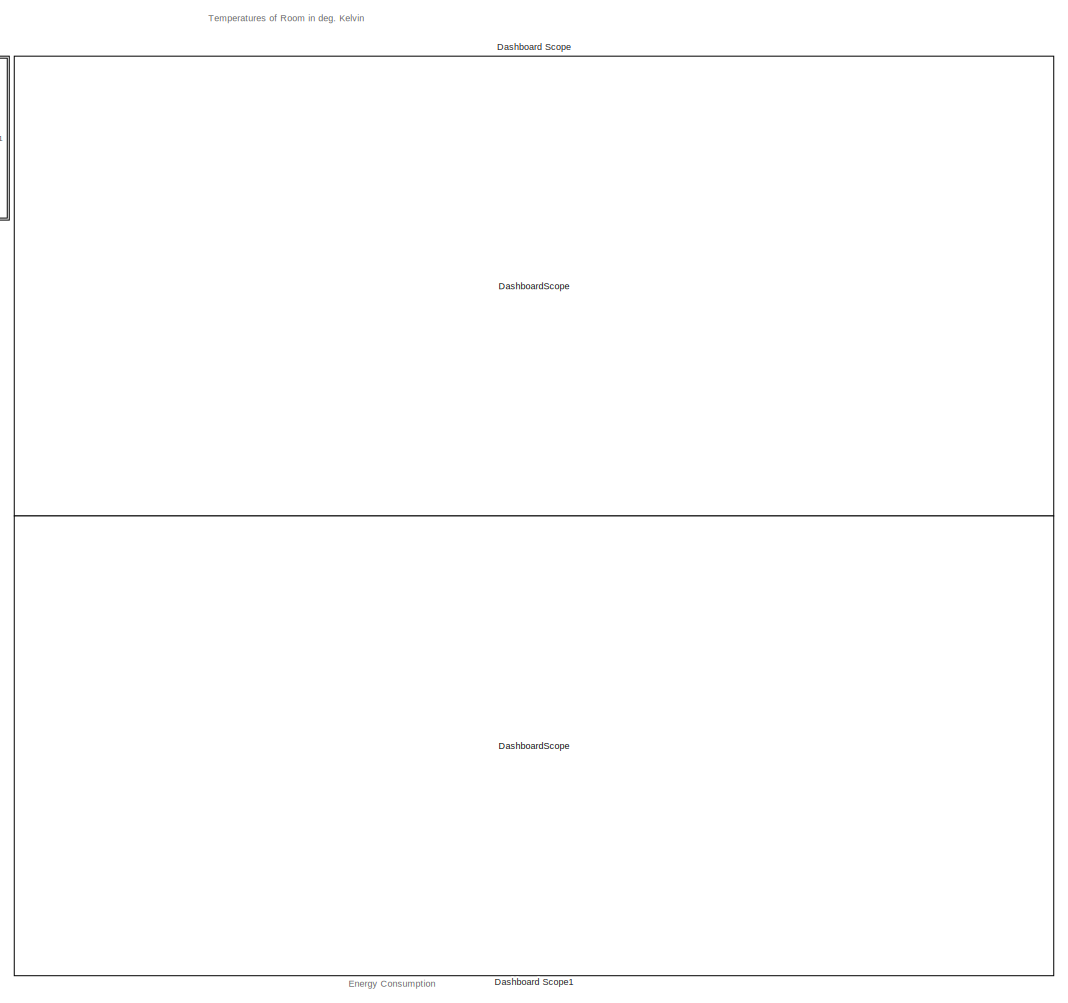
[diagram: root canvas - part 1/4, center side, full height]
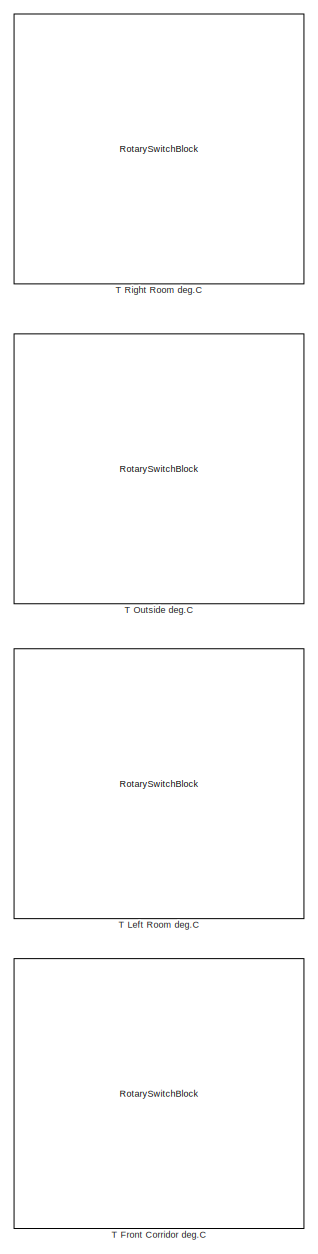
[diagram: root canvas - part 2/4, right side, full height]
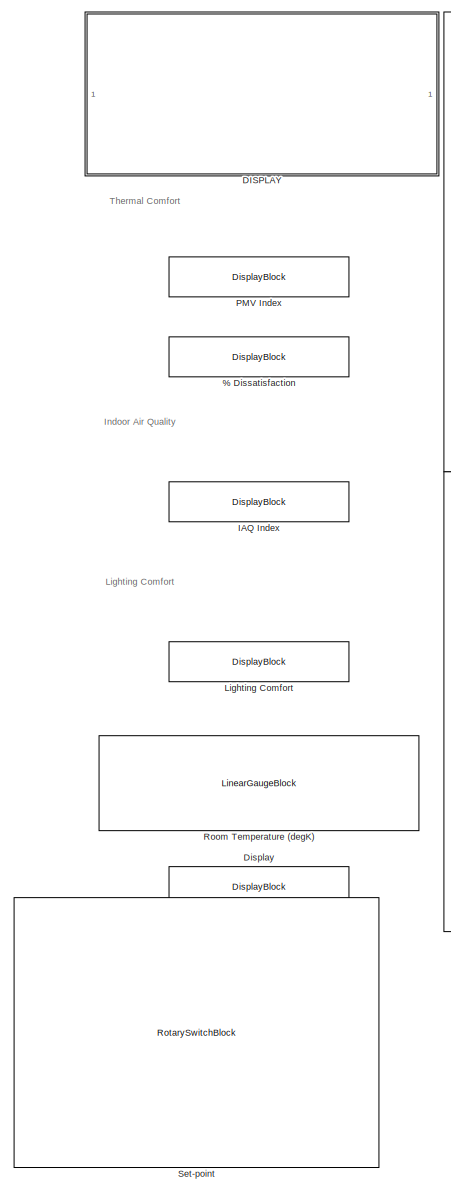
[diagram: root canvas - part 3/4, left side, full height]
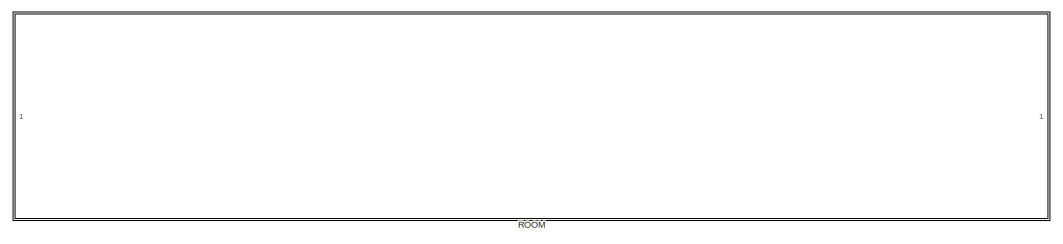
[diagram: root canvas - part 4/4, bottom center region]
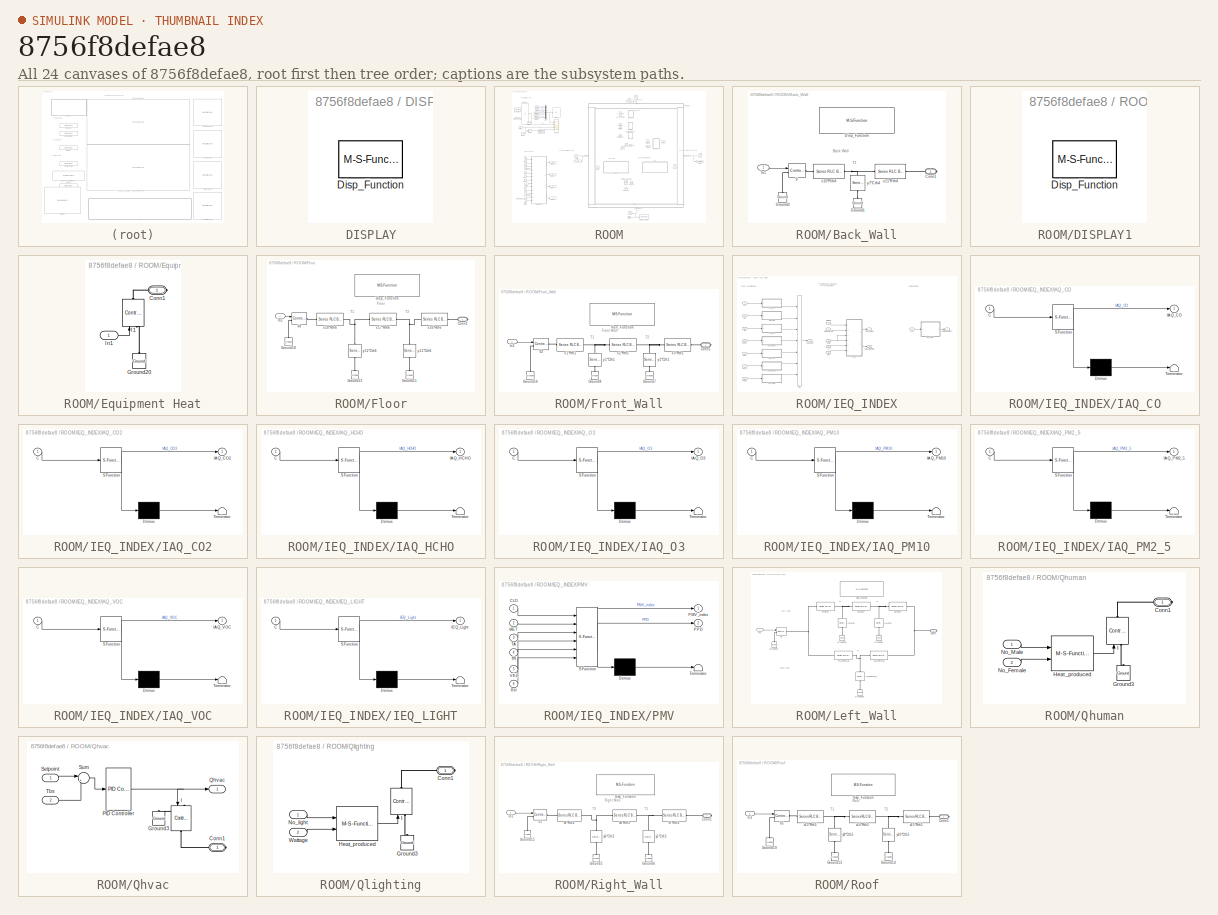
[diagram: thumbnail index - all 24 canvases of the model, root first then tree order]
MODEL slx_8756f8defae8
KIND model
CONFIG AbsTol = auto
CONFIG EnableMultiTasking = on
CONFIG FixedStep = Ts
CONFIG InitFcn = clc;\nclear all;\nclose all;\naddpath('<path> files\3r2c model')\nTs=1\nDuration=36000;\n%% Coefficients of Rs and Cs\n\n%% Front Wall\nl1 = 7.37;\nb1 = 2.63;\ny1 = 0.5;\nx1 = 0.33;\ny2 = 0.5;\nx2 = 0.33;\nx3 = 0.33;\n\n%% Left Wall\nl2 = 10.11;\nb2 = 2.63;\ny3 = 0.5;\nx4 = 0.33;\ny4 = 0.5;\nx5 = 0.33;\nx6 = 0.33;\n\n%% Left Wall Glass\nx4_g = 0.5;\nx5_g = 0.5;\ny3_g = 1;\n\n%% Right Wall\nl3 = 7.37;\n...<+3730ch>
CONFIG MaxStep = auto
CONFIG MinStep = auto
CONFIG RelTol = 1e-3
CONFIG SampleTimeConstraint = Unconstrained
CONFIG Solver = ode3
CONFIG SolverName = ode3
CONFIG StartTime = 0.0
CONFIG StopTime = inf
BLOCK [DisplayBlock] % Dissatisfaction
  LabelPosition = Hide
  WebBlockId = 889
BLOCK [SubSystem] DISPLAY
  AttributesFormatString = 81.39
  Ports = []
  RequestExecContextInheritance = off
BLOCK [M-S-Function] DISPLAY/Disp_Function
  FunctionName = fn_Display
  Ports = []
BLOCK [DashboardScope] Dashboard Scope
  WebBlockId = 896
  Ymax = 330
  Ymin = 270
BLOCK [DashboardScope] Dashboard Scope1
  WebBlockId = 897
  Ymax = 10000
  Ymin = 0
BLOCK [DisplayBlock] Display
  LabelPosition = Hide
  WebBlockId = 772
BLOCK [DisplayBlock] IAQ Index
  LabelPosition = Hide
  WebBlockId = 890
BLOCK [DisplayBlock] Lighting Comfort
  LabelPosition = Hide
  WebBlockId = 893
BLOCK [DisplayBlock] PMV Index
  LabelPosition = Hide
  WebBlockId = 888
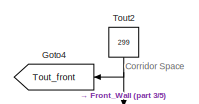
[diagram: ROOM - part 1/5, top center region]
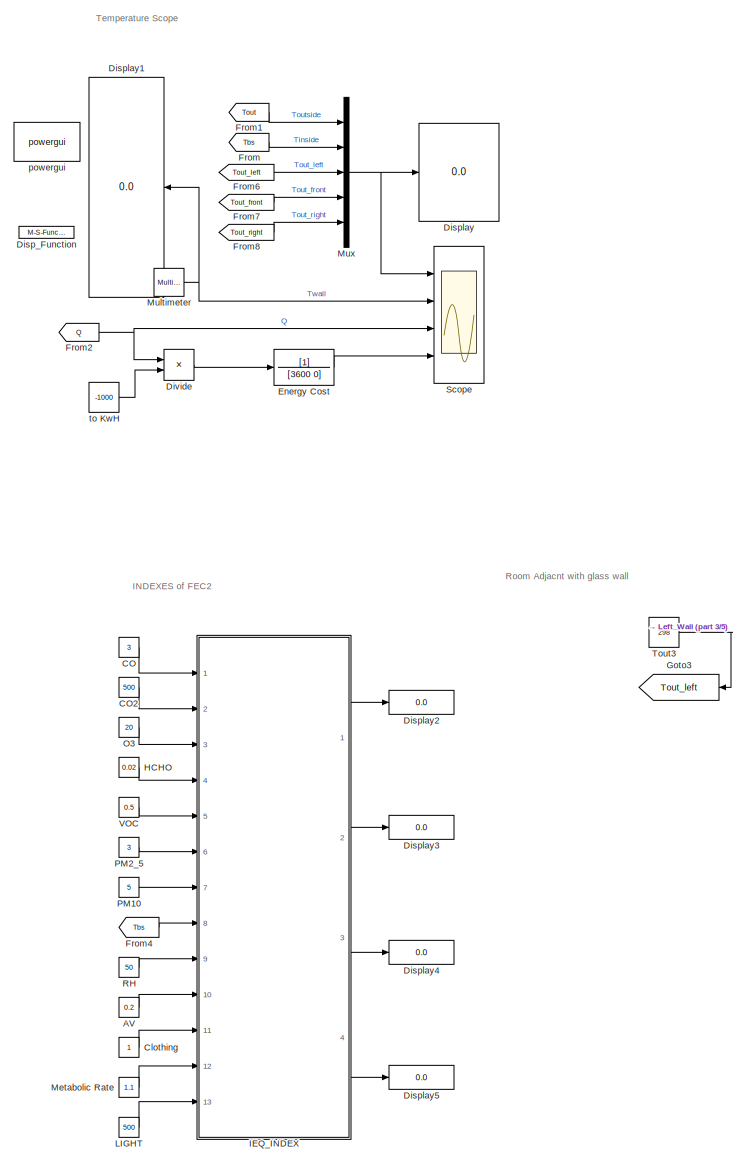
[diagram: ROOM - part 2/5, left side, full height]
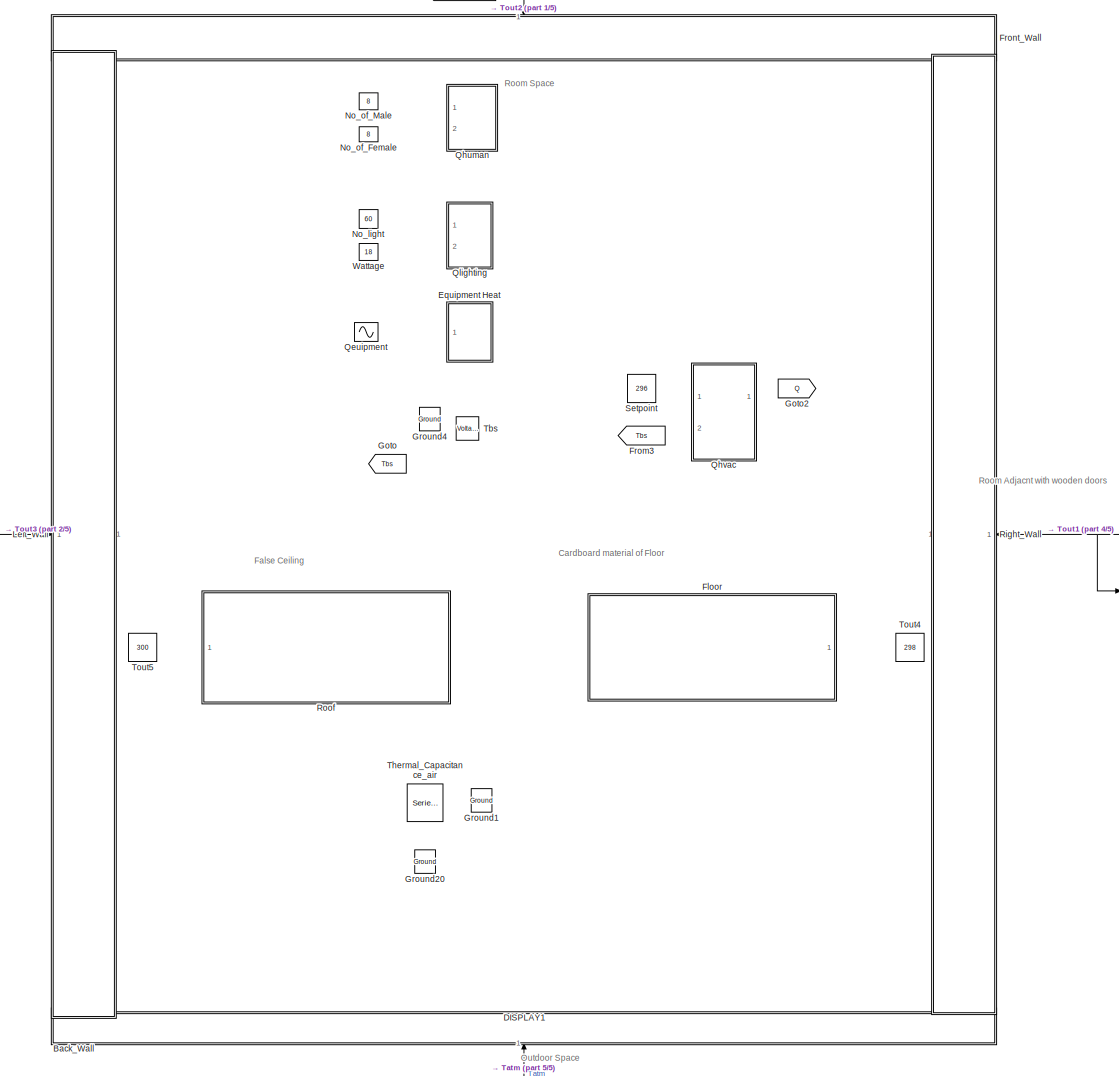
[diagram: ROOM - part 3/5, center side, full height]
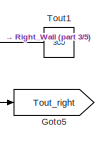
[diagram: ROOM - part 4/5, middle right region]
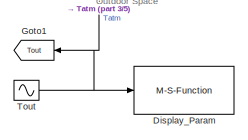
[diagram: ROOM - part 5/5, bottom center region]
BLOCK [SubSystem] ROOM
  Ports = []
  RequestExecContextInheritance = off
BLOCK [Constant] ROOM/AV
  Value = 0.2
BLOCK [SubSystem] ROOM/Back_Wall
  Ports = [1, 0, 0, 0, 0, 0, 1]
  RequestExecContextInheritance = off
BLOCK [PMIOPort] ROOM/Back_Wall/Conn1
  Side = Right
BLOCK [M-S-Function] ROOM/Back_Wall/Disp_Function
  FunctionName = fn_Display_wall
  Ports = []
BLOCK [Reference] ROOM/Back_Wall/Ground1  REF=powerlib/Elements/Ground
  Ports = [0, 0, 0, 0, 0, 1]
  SourceBlock = powerlib/Elements/Ground
  SourceProductBaseCode = PS
  SourceProductName = Simscape Electrical
  SourceType = Ground
BLOCK [Reference] ROOM/Back_Wall/Ground2  REF=powerlib/Elements/Ground
  Ports = [0, 0, 0, 0, 0, 1]
  SourceBlock = powerlib/Elements/Ground
  SourceProductBaseCode = PS
  SourceProductName = Simscape Electrical
  SourceType = Ground
BLOCK [Inport] ROOM/Back_Wall/In1
  IconDisplay = Port number
BLOCK [Reference] ROOM/Back_Wall/V  REF=powerlib/Electrical
Sources/Controlled Voltage Source
  Ports = [1, 0, 0, 0, 0, 1, 1]
  SourceBlock = powerlib/Electrical\nSources/Controlled Voltage Source
  SourceProductBaseCode = PS
  SourceProductName = Simscape Electrical
  SourceType = Controlled Voltage Source
BLOCK [Reference] ROOM/Back_Wall/x10*Rth4  REF=powerlib/Elements/Series RLC Branch
  Ports = [0, 0, 0, 0, 0, 1, 1]
  SourceBlock = powerlib/Elements/Series RLC Branch
  SourceProductBaseCode = PS
  SourceProductName = Simscape Electrical
  SourceType = Series RLC Branch
BLOCK [Reference] ROOM/Back_Wall/x11*Rth4  REF=powerlib/Elements/Series RLC Branch
  Ports = [0, 0, 0, 0, 0, 1, 1]
  SourceBlock = powerlib/Elements/Series RLC Branch
  SourceProductBaseCode = PS
  SourceProductName = Simscape Electrical
  SourceType = Series RLC Branch
BLOCK [Reference] ROOM/Back_Wall/y7*Cth4  REF=powerlib/Elements/Series RLC Branch
  Ports = [0, 0, 0, 0, 0, 1, 1]
  SourceBlock = powerlib/Elements/Series RLC Branch
  SourceProductBaseCode = PS
  SourceProductName = Simscape Electrical
  SourceType = Series RLC Branch
BLOCK [Constant] ROOM/CO
  Value = 3
BLOCK [Constant] ROOM/CO2
  Value = 500
BLOCK [Constant] ROOM/Clothing
BLOCK [SubSystem] ROOM/DISPLAY1
  AttributesFormatString = 35.01
  Ports = []
  RequestExecContextInheritance = off
BLOCK [M-S-Function] ROOM/DISPLAY1/Disp_Function
  FunctionName = fn_Display_Room
  Ports = []
BLOCK [M-S-Function] ROOM/Disp_Function
  FunctionName = fn_IEQ
  Ports = []
BLOCK [Display] ROOM/Display
  Decimation = 1
  Ports = [1]
BLOCK [Display] ROOM/Display1
  Decimation = 1
  Ports = [1]
BLOCK [Display] ROOM/Display2
  Decimation = 1
  Ports = [1]
BLOCK [Display] ROOM/Display3
  Decimation = 1
  Ports = [1]
BLOCK [Display] ROOM/Display4
  Decimation = 1
  Ports = [1]
BLOCK [Display] ROOM/Display5
  Decimation = 1
  Ports = [1]
BLOCK [M-S-Function] ROOM/Display_Param
  FunctionName = Display_Param
  Ports = [1]
BLOCK [Product] ROOM/Divide
  InputSameDT = off
  Inputs = */
  OutDataTypeStr = Inherit: Inherit via internal rule
  Ports = [2, 1]
  RndMeth = Floor
  SaturateOnIntegerOverflow = off
BLOCK [TransferFcn] ROOM/Energy Cost
  Denominator = [3600 0]
BLOCK [SubSystem] ROOM/Equipment Heat
  Ports = [1, 0, 0, 0, 0, 0, 1]
  RequestExecContextInheritance = off
  ShowPortLabels = none
BLOCK [PMIOPort] ROOM/Equipment Heat/Conn1
  Side = Right
BLOCK [Reference] ROOM/Equipment Heat/Ground20  REF=powerlib/Elements/Ground
  Ports = [0, 0, 0, 0, 0, 1]
  SourceBlock = powerlib/Elements/Ground
  SourceProductBaseCode = PS
  SourceProductName = Simscape Electrical
  SourceType = Ground
BLOCK [Reference] ROOM/Equipment Heat/I1  REF=powerlib/Electrical
Sources/Controlled Current Source
  Ports = [1, 0, 0, 0, 0, 1, 1]
  SourceBlock = powerlib/Electrical\nSources/Controlled Current Source
  SourceProductBaseCode = PS
  SourceProductName = Simscape Electrical
  SourceType = Controlled Current Source
BLOCK [Inport] ROOM/Equipment Heat/In1
  IconDisplay = Port number
BLOCK [SubSystem] ROOM/Floor
  Ports = [1, 0, 0, 0, 0, 0, 1]
  RequestExecContextInheritance = off
BLOCK [PMIOPort] ROOM/Floor/Conn1
  Side = Right
BLOCK [M-S-Function] ROOM/Floor/Disp_Function
  FunctionName = fn_Display_wall
  Ports = []
BLOCK [Reference] ROOM/Floor/Ground11  REF=powerlib/Elements/Ground
  Ports = [0, 0, 0, 0, 0, 1]
  SourceBlock = powerlib/Elements/Ground
  SourceProductBaseCode = PS
  SourceProductName = Simscape Electrical
  SourceType = Ground
BLOCK [Reference] ROOM/Floor/Ground12  REF=powerlib/Elements/Ground
  Ports = [0, 0, 0, 0, 0, 1]
  SourceBlock = powerlib/Elements/Ground
  SourceProductBaseCode = PS
  SourceProductName = Simscape Electrical
  SourceType = Ground
BLOCK [Reference] ROOM/Floor/Ground18  REF=powerlib/Elements/Ground
  Ports = [0, 0, 0, 0, 0, 1]
  SourceBlock = powerlib/Elements/Ground
  SourceProductBaseCode = PS
  SourceProductName = Simscape Electrical
  SourceType = Ground
BLOCK [Inport] ROOM/Floor/In1
  IconDisplay = Port number
BLOCK [Reference] ROOM/Floor/V4  REF=powerlib/Electrical
Sources/Controlled Voltage Source
  Ports = [1, 0, 0, 0, 0, 1, 1]
  SourceBlock = powerlib/Electrical\nSources/Controlled Voltage Source
  SourceProductBaseCode = PS
  SourceProductName = Simscape Electrical
  SourceType = Controlled Voltage Source
BLOCK [Reference] ROOM/Floor/x16*Rth6  REF=powerlib/Elements/Series RLC Branch
  Ports = [0, 0, 0, 0, 0, 1, 1]
  SourceBlock = powerlib/Elements/Series RLC Branch
  SourceProductBaseCode = PS
  SourceProductName = Simscape Electrical
  SourceType = Series RLC Branch
BLOCK [Reference] ROOM/Floor/x17*Rth6  REF=powerlib/Elements/Series RLC Branch
  Ports = [0, 0, 0, 0, 0, 1, 1]
  SourceBlock = powerlib/Elements/Series RLC Branch
  SourceProductBaseCode = PS
  SourceProductName = Simscape Electrical
  SourceType = Series RLC Branch
BLOCK [Reference] ROOM/Floor/x18*Rth6  REF=powerlib/Elements/Series RLC Branch
  Ports = [0, 0, 0, 0, 0, 1, 1]
  SourceBlock = powerlib/Elements/Series RLC Branch
  SourceProductBaseCode = PS
  SourceProductName = Simscape Electrical
  SourceType = Series RLC Branch
BLOCK [Reference] ROOM/Floor/y11*Cth6  REF=powerlib/Elements/Series RLC Branch
  Ports = [0, 0, 0, 0, 0, 1, 1]
  SourceBlock = powerlib/Elements/Series RLC Branch
  SourceProductBaseCode = PS
  SourceProductName = Simscape Electrical
  SourceType = Series RLC Branch
BLOCK [Reference] ROOM/Floor/y12*Cth6  REF=powerlib/Elements/Series RLC Branch
  Ports = [0, 0, 0, 0, 0, 1, 1]
  SourceBlock = powerlib/Elements/Series RLC Branch
  SourceProductBaseCode = PS
  SourceProductName = Simscape Electrical
  SourceType = Series RLC Branch
BLOCK [From] ROOM/From
  GotoTag = Tbs
BLOCK [From] ROOM/From1
  GotoTag = Tout
BLOCK [From] ROOM/From2
  GotoTag = Q
BLOCK [From] ROOM/From3
  GotoTag = Tbs
BLOCK [From] ROOM/From4
  GotoTag = Tbs
BLOCK [From] ROOM/From6
  GotoTag = Tout_left
BLOCK [From] ROOM/From7
  GotoTag = Tout_front
BLOCK [From] ROOM/From8
  GotoTag = Tout_right
BLOCK [SubSystem] ROOM/Front_Wall
  Ports = [1, 0, 0, 0, 0, 0, 1]
  RequestExecContextInheritance = off
BLOCK [PMIOPort] ROOM/Front_Wall/Conn1
  Side = Right
BLOCK [M-S-Function] ROOM/Front_Wall/Disp_Function
  FunctionName = fn_Display_wall
  Ports = []
BLOCK [Reference] ROOM/Front_Wall/Ground16  REF=powerlib/Elements/Ground
  Ports = [0, 0, 0, 0, 0, 1]
  SourceBlock = powerlib/Elements/Ground
  SourceProductBaseCode = PS
  SourceProductName = Simscape Electrical
  SourceType = Ground
BLOCK [Reference] ROOM/Front_Wall/Ground7  REF=powerlib/Elements/Ground
  Ports = [0, 0, 0, 0, 0, 1]
  SourceBlock = powerlib/Elements/Ground
  SourceProductBaseCode = PS
  SourceProductName = Simscape Electrical
  SourceType = Ground
BLOCK [Reference] ROOM/Front_Wall/Ground8  REF=powerlib/Elements/Ground
  Ports = [0, 0, 0, 0, 0, 1]
  SourceBlock = powerlib/Elements/Ground
  SourceProductBaseCode = PS
  SourceProductName = Simscape Electrical
  SourceType = Ground
BLOCK [Inport] ROOM/Front_Wall/In1
  IconDisplay = Port number
BLOCK [Reference] ROOM/Front_Wall/V2  REF=powerlib/Electrical
Sources/Controlled Voltage Source
  Ports = [1, 0, 0, 0, 0, 1, 1]
  SourceBlock = powerlib/Electrical\nSources/Controlled Voltage Source
  SourceProductBaseCode = PS
  SourceProductName = Simscape Electrical
  SourceType = Controlled Voltage Source
BLOCK [Reference] ROOM/Front_Wall/x1*Rth1  REF=powerlib/Elements/Series RLC Branch
  Ports = [0, 0, 0, 0, 0, 1, 1]
  SourceBlock = powerlib/Elements/Series RLC Branch
  SourceProductBaseCode = PS
  SourceProductName = Simscape Electrical
  SourceType = Series RLC Branch
BLOCK [Reference] ROOM/Front_Wall/x2*Rth1  REF=powerlib/Elements/Series RLC Branch
  Ports = [0, 0, 0, 0, 0, 1, 1]
  SourceBlock = powerlib/Elements/Series RLC Branch
  SourceProductBaseCode = PS
  SourceProductName = Simscape Electrical
  SourceType = Series RLC Branch
BLOCK [Reference] ROOM/Front_Wall/x3*Rth1  REF=powerlib/Elements/Series RLC Branch
  Ports = [0, 0, 0, 0, 0, 1, 1]
  SourceBlock = powerlib/Elements/Series RLC Branch
  SourceProductBaseCode = PS
  SourceProductName = Simscape Electrical
  SourceType = Series RLC Branch
BLOCK [Reference] ROOM/Front_Wall/y1*Cth1  REF=powerlib/Elements/Series RLC Branch
  Ports = [0, 0, 0, 0, 0, 1, 1]
  SourceBlock = powerlib/Elements/Series RLC Branch
  SourceProductBaseCode = PS
  SourceProductName = Simscape Electrical
  SourceType = Series RLC Branch
BLOCK [Reference] ROOM/Front_Wall/y2*Cth1  REF=powerlib/Elements/Series RLC Branch
  Ports = [0, 0, 0, 0, 0, 1, 1]
  SourceBlock = powerlib/Elements/Series RLC Branch
  SourceProductBaseCode = PS
  SourceProductName = Simscape Electrical
  SourceType = Series RLC Branch
BLOCK [Goto] ROOM/Goto
  GotoTag = Tbs
BLOCK [Goto] ROOM/Goto1
  GotoTag = Tout
BLOCK [Goto] ROOM/Goto2
  GotoTag = Q
BLOCK [Goto] ROOM/Goto3
  GotoTag = Tout_left
BLOCK [Goto] ROOM/Goto4
  GotoTag = Tout_front
BLOCK [Goto] ROOM/Goto5
  GotoTag = Tout_right
BLOCK [Reference] ROOM/Ground1  REF=powerlib/Elements/Ground
  Ports = [0, 0, 0, 0, 0, 1]
  SourceBlock = powerlib/Elements/Ground
  SourceProductBaseCode = PS
  SourceProductName = Simscape Electrical
  SourceType = Ground
BLOCK [Reference] ROOM/Ground20  REF=powerlib/Elements/Ground
  Ports = [0, 0, 0, 0, 0, 1]
  SourceBlock = powerlib/Elements/Ground
  SourceProductBaseCode = PS
  SourceProductName = Simscape Electrical
  SourceType = Ground
BLOCK [Reference] ROOM/Ground4  REF=powerlib/Elements/Ground
  Ports = [0, 0, 0, 0, 0, 1]
  SourceBlock = powerlib/Elements/Ground
  SourceProductBaseCode = PS
  SourceProductName = Simscape Electrical
  SourceType = Ground
BLOCK [Constant] ROOM/HCHO
  Value = 0.02
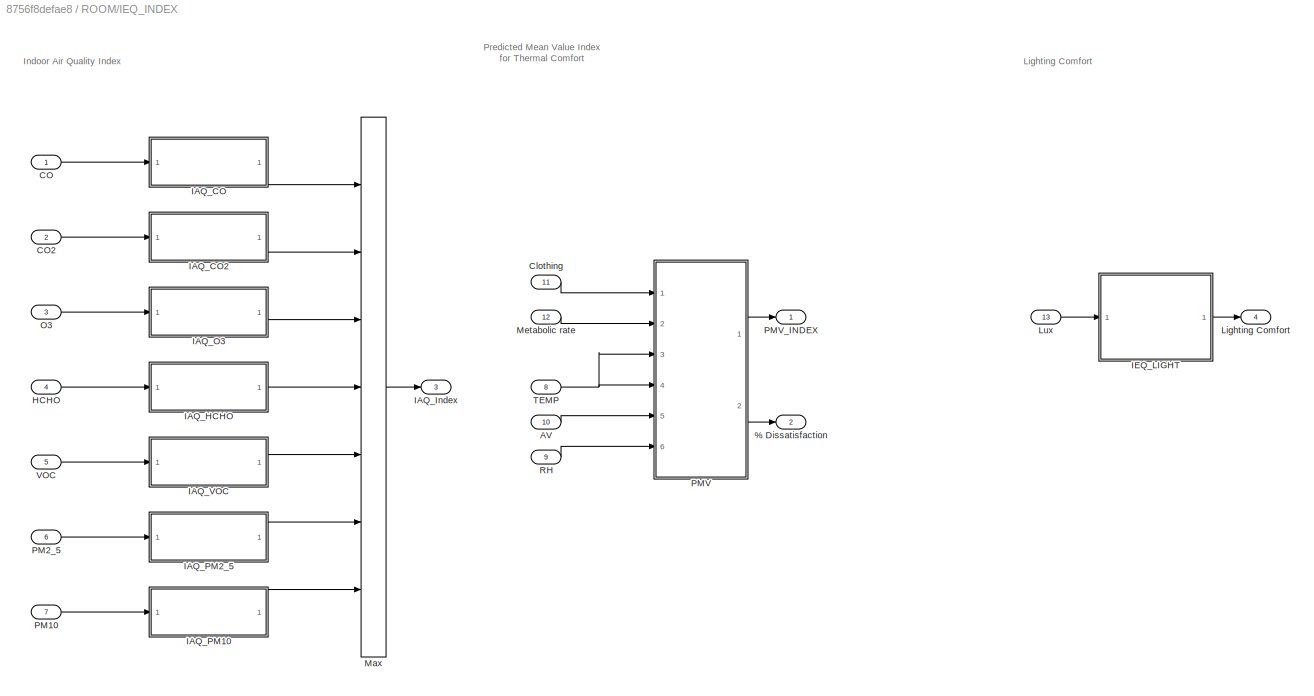
BLOCK [SubSystem] ROOM/IEQ_INDEX
  Ports = [13, 4]
  RequestExecContextInheritance = off
BLOCK [Outport] ROOM/IEQ_INDEX/% Dissatisfaction 
  IconDisplay = Port number
  Port = 2
BLOCK [Inport] ROOM/IEQ_INDEX/AV
  IconDisplay = Port number
  Port = 10
BLOCK [Inport] ROOM/IEQ_INDEX/CO
  IconDisplay = Port number
BLOCK [Inport] ROOM/IEQ_INDEX/CO2
  IconDisplay = Port number
  Port = 2
BLOCK [Inport] ROOM/IEQ_INDEX/Clothing
  IconDisplay = Port number
  Port = 11
BLOCK [Inport] ROOM/IEQ_INDEX/HCHO
  IconDisplay = Port number
  Port = 4
BLOCK [SubSystem] ROOM/IEQ_INDEX/IAQ_CO
  ErrorFcn = Stateflow.Translate.translate
  PermitHierarchicalResolution = ExplicitOnly
  Ports = [1, 1]
  RequestExecContextInheritance = off
  SFBlockType = MATLAB Function
  TreatAsAtomicUnit = on
BLOCK [Demux] ROOM/IEQ_INDEX/IAQ_CO/ Demux 
  Outputs = 1
  Ports = [1, 1]
BLOCK [S-Function] ROOM/IEQ_INDEX/IAQ_CO/ SFunction 
  EnableBusSupport = on
  FunctionName = sf_sfun
  PortCounts = [1 2]
  Ports = [1, 2]
  SFcnIsStateOwnerBlock = off
  SFunctionDeploymentMode = off
  Tag = Stateflow S-Function Wall_Model_Version_1_8 2
BLOCK [Terminator] ROOM/IEQ_INDEX/IAQ_CO/ Terminator 
BLOCK [Inport] ROOM/IEQ_INDEX/IAQ_CO/C
  IconDisplay = Port number
BLOCK [Outport] ROOM/IEQ_INDEX/IAQ_CO/IAQ_CO
  IconDisplay = Port number
BLOCK [SubSystem] ROOM/IEQ_INDEX/IAQ_CO2
  ErrorFcn = Stateflow.Translate.translate
  PermitHierarchicalResolution = ExplicitOnly
  Ports = [1, 1]
  RequestExecContextInheritance = off
  SFBlockType = MATLAB Function
  TreatAsAtomicUnit = on
BLOCK [Demux] ROOM/IEQ_INDEX/IAQ_CO2/ Demux 
  Outputs = 1
  Ports = [1, 1]
BLOCK [S-Function] ROOM/IEQ_INDEX/IAQ_CO2/ SFunction 
  EnableBusSupport = on
  FunctionName = sf_sfun
  PortCounts = [1 2]
  Ports = [1, 2]
  SFcnIsStateOwnerBlock = off
  SFunctionDeploymentMode = off
  Tag = Stateflow S-Function Wall_Model_Version_1_8 1
BLOCK [Terminator] ROOM/IEQ_INDEX/IAQ_CO2/ Terminator 
BLOCK [Inport] ROOM/IEQ_INDEX/IAQ_CO2/C
  IconDisplay = Port number
BLOCK [Outport] ROOM/IEQ_INDEX/IAQ_CO2/IAQ_CO2
  IconDisplay = Port number
BLOCK [SubSystem] ROOM/IEQ_INDEX/IAQ_HCHO
  ErrorFcn = Stateflow.Translate.translate
  PermitHierarchicalResolution = ExplicitOnly
  Ports = [1, 1]
  RequestExecContextInheritance = off
  SFBlockType = MATLAB Function
  TreatAsAtomicUnit = on
BLOCK [Demux] ROOM/IEQ_INDEX/IAQ_HCHO/ Demux 
  Outputs = 1
  Ports = [1, 1]
BLOCK [S-Function] ROOM/IEQ_INDEX/IAQ_HCHO/ SFunction 
  EnableBusSupport = on
  FunctionName = sf_sfun
  PortCounts = [1 2]
  Ports = [1, 2]
  SFcnIsStateOwnerBlock = off
  SFunctionDeploymentMode = off
  Tag = Stateflow S-Function Wall_Model_Version_1_8 4
BLOCK [Terminator] ROOM/IEQ_INDEX/IAQ_HCHO/ Terminator 
BLOCK [Inport] ROOM/IEQ_INDEX/IAQ_HCHO/C
  IconDisplay = Port number
BLOCK [Outport] ROOM/IEQ_INDEX/IAQ_HCHO/IAQ_HCHO
  IconDisplay = Port number
BLOCK [Outport] ROOM/IEQ_INDEX/IAQ_Index
  IconDisplay = Port number
  Port = 3
BLOCK [SubSystem] ROOM/IEQ_INDEX/IAQ_O3
  ErrorFcn = Stateflow.Translate.translate
  PermitHierarchicalResolution = ExplicitOnly
  Ports = [1, 1]
  RequestExecContextInheritance = off
  SFBlockType = MATLAB Function
  TreatAsAtomicUnit = on
BLOCK [Demux] ROOM/IEQ_INDEX/IAQ_O3/ Demux 
  Outputs = 1
  Ports = [1, 1]
BLOCK [S-Function] ROOM/IEQ_INDEX/IAQ_O3/ SFunction 
  EnableBusSupport = on
  FunctionName = sf_sfun
  PortCounts = [1 2]
  Ports = [1, 2]
  SFcnIsStateOwnerBlock = off
  SFunctionDeploymentMode = off
  Tag = Stateflow S-Function Wall_Model_Version_1_8 3
BLOCK [Terminator] ROOM/IEQ_INDEX/IAQ_O3/ Terminator 
BLOCK [Inport] ROOM/IEQ_INDEX/IAQ_O3/C
  IconDisplay = Port number
BLOCK [Outport] ROOM/IEQ_INDEX/IAQ_O3/IAQ_O3
  IconDisplay = Port number
BLOCK [SubSystem] ROOM/IEQ_INDEX/IAQ_PM10
  ErrorFcn = Stateflow.Translate.translate
  PermitHierarchicalResolution = ExplicitOnly
  Ports = [1, 1]
  RequestExecContextInheritance = off
  SFBlockType = MATLAB Function
  TreatAsAtomicUnit = on
BLOCK [Demux] ROOM/IEQ_INDEX/IAQ_PM10/ Demux 
  Outputs = 1
  Ports = [1, 1]
BLOCK [S-Function] ROOM/IEQ_INDEX/IAQ_PM10/ SFunction 
  EnableBusSupport = on
  FunctionName = sf_sfun
  PortCounts = [1 2]
  Ports = [1, 2]
  SFcnIsStateOwnerBlock = off
  SFunctionDeploymentMode = off
  Tag = Stateflow S-Function Wall_Model_Version_1_8 7
BLOCK [Terminator] ROOM/IEQ_INDEX/IAQ_PM10/ Terminator 
BLOCK [Inport] ROOM/IEQ_INDEX/IAQ_PM10/C
  IconDisplay = Port number
BLOCK [Outport] ROOM/IEQ_INDEX/IAQ_PM10/IAQ_PM10
  IconDisplay = Port number
BLOCK [SubSystem] ROOM/IEQ_INDEX/IAQ_PM2_5
  ErrorFcn = Stateflow.Translate.translate
  PermitHierarchicalResolution = ExplicitOnly
  Ports = [1, 1]
  RequestExecContextInheritance = off
  SFBlockType = MATLAB Function
  TreatAsAtomicUnit = on
BLOCK [Demux] ROOM/IEQ_INDEX/IAQ_PM2_5/ Demux 
  Outputs = 1
  Ports = [1, 1]
BLOCK [S-Function] ROOM/IEQ_INDEX/IAQ_PM2_5/ SFunction 
  EnableBusSupport = on
  FunctionName = sf_sfun
  PortCounts = [1 2]
  Ports = [1, 2]
  SFcnIsStateOwnerBlock = off
  SFunctionDeploymentMode = off
  Tag = Stateflow S-Function Wall_Model_Version_1_8 6
BLOCK [Terminator] ROOM/IEQ_INDEX/IAQ_PM2_5/ Terminator 
BLOCK [Inport] ROOM/IEQ_INDEX/IAQ_PM2_5/C
  IconDisplay = Port number
BLOCK [Outport] ROOM/IEQ_INDEX/IAQ_PM2_5/IAQ_PM2_5
  IconDisplay = Port number
BLOCK [SubSystem] ROOM/IEQ_INDEX/IAQ_VOC
  ErrorFcn = Stateflow.Translate.translate
  PermitHierarchicalResolution = ExplicitOnly
  Ports = [1, 1]
  RequestExecContextInheritance = off
  SFBlockType = MATLAB Function
  TreatAsAtomicUnit = on
BLOCK [Demux] ROOM/IEQ_INDEX/IAQ_VOC/ Demux 
  Outputs = 1
  Ports = [1, 1]
BLOCK [S-Function] ROOM/IEQ_INDEX/IAQ_VOC/ SFunction 
  EnableBusSupport = on
  FunctionName = sf_sfun
  PortCounts = [1 2]
  Ports = [1, 2]
  SFcnIsStateOwnerBlock = off
  SFunctionDeploymentMode = off
  Tag = Stateflow S-Function Wall_Model_Version_1_8 5
BLOCK [Terminator] ROOM/IEQ_INDEX/IAQ_VOC/ Terminator 
BLOCK [Inport] ROOM/IEQ_INDEX/IAQ_VOC/C
  IconDisplay = Port number
BLOCK [Outport] ROOM/IEQ_INDEX/IAQ_VOC/IAQ_VOC
  IconDisplay = Port number
BLOCK [SubSystem] ROOM/IEQ_INDEX/IEQ_LIGHT
  ErrorFcn = Stateflow.Translate.translate
  PermitHierarchicalResolution = ExplicitOnly
  Ports = [1, 1]
  RequestExecContextInheritance = off
  SFBlockType = MATLAB Function
  TreatAsAtomicUnit = on
BLOCK [Demux] ROOM/IEQ_INDEX/IEQ_LIGHT/ Demux 
  Outputs = 1
  Ports = [1, 1]
BLOCK [S-Function] ROOM/IEQ_INDEX/IEQ_LIGHT/ SFunction 
  EnableBusSupport = on
  FunctionName = sf_sfun
  PortCounts = [1 2]
  Ports = [1, 2]
  SFcnIsStateOwnerBlock = off
  SFunctionDeploymentMode = off
  Tag = Stateflow S-Function Wall_Model_Version_1_8 11
BLOCK [Terminator] ROOM/IEQ_INDEX/IEQ_LIGHT/ Terminator 
BLOCK [Inport] ROOM/IEQ_INDEX/IEQ_LIGHT/C
  IconDisplay = Port number
BLOCK [Outport] ROOM/IEQ_INDEX/IEQ_LIGHT/IEQ_Light
  IconDisplay = Port number
BLOCK [Outport] ROOM/IEQ_INDEX/Lighting Comfort
  IconDisplay = Port number
  Port = 4
BLOCK [Inport] ROOM/IEQ_INDEX/Lux
  IconDisplay = Port number
  Port = 13
BLOCK [MinMax] ROOM/IEQ_INDEX/Max
  Function = max
  InputSameDT = off
  Inputs = 7
  Ports = [7, 1]
  SaturateOnIntegerOverflow = off
BLOCK [Inport] ROOM/IEQ_INDEX/Metabolic rate
  IconDisplay = Port number
  Port = 12
BLOCK [Inport] ROOM/IEQ_INDEX/O3
  IconDisplay = Port number
  Port = 3
BLOCK [Inport] ROOM/IEQ_INDEX/PM10
  IconDisplay = Port number
  Port = 7
BLOCK [Inport] ROOM/IEQ_INDEX/PM2_5
  IconDisplay = Port number
  Port = 6
BLOCK [SubSystem] ROOM/IEQ_INDEX/PMV
  ErrorFcn = Stateflow.Translate.translate
  PermitHierarchicalResolution = ExplicitOnly
  Ports = [6, 2]
  RequestExecContextInheritance = off
  SFBlockType = MATLAB Function
  TreatAsAtomicUnit = on
BLOCK [Demux] ROOM/IEQ_INDEX/PMV/ Demux 
  Outputs = 1
  Ports = [1, 1]
BLOCK [S-Function] ROOM/IEQ_INDEX/PMV/ SFunction 
  EnableBusSupport = on
  FunctionName = sf_sfun
  PortCounts = [6 3]
  Ports = [6, 3]
  SFcnIsStateOwnerBlock = off
  SFunctionDeploymentMode = off
  Tag = Stateflow S-Function Wall_Model_Version_1_8 12
BLOCK [Terminator] ROOM/IEQ_INDEX/PMV/ Terminator 
BLOCK [Inport] ROOM/IEQ_INDEX/PMV/CLO
  IconDisplay = Port number
BLOCK [Inport] ROOM/IEQ_INDEX/PMV/MET
  IconDisplay = Port number
  Port = 2
BLOCK [Outport] ROOM/IEQ_INDEX/PMV/PMV_index
  IconDisplay = Port number
BLOCK [Outport] ROOM/IEQ_INDEX/PMV/PPD
  IconDisplay = Port number
  Port = 2
BLOCK [Inport] ROOM/IEQ_INDEX/PMV/RH
  IconDisplay = Port number
  Port = 6
BLOCK [Inport] ROOM/IEQ_INDEX/PMV/TA
  IconDisplay = Port number
  Port = 3
BLOCK [Inport] ROOM/IEQ_INDEX/PMV/TR
  IconDisplay = Port number
  Port = 4
BLOCK [Inport] ROOM/IEQ_INDEX/PMV/VEL
  IconDisplay = Port number
  Port = 5
BLOCK [Outport] ROOM/IEQ_INDEX/PMV_INDEX
  IconDisplay = Port number
BLOCK [Inport] ROOM/IEQ_INDEX/RH
  IconDisplay = Port number
  Port = 9
BLOCK [Inport] ROOM/IEQ_INDEX/TEMP
  IconDisplay = Port number
  Port = 8
BLOCK [Inport] ROOM/IEQ_INDEX/VOC
  IconDisplay = Port number
  Port = 5
BLOCK [Constant] ROOM/LIGHT
  Value = 500
BLOCK [SubSystem] ROOM/Left_Wall
  Ports = [1, 0, 0, 0, 0, 0, 1]
  RequestExecContextInheritance = off
BLOCK [PMIOPort] ROOM/Left_Wall/Conn1
  Side = Right
BLOCK [M-S-Function] ROOM/Left_Wall/Disp_Function
  FunctionName = fn_Display_wall
  Ports = []
BLOCK [Reference] ROOM/Left_Wall/Ground10  REF=powerlib/Elements/Ground
  Ports = [0, 0, 0, 0, 0, 1]
  SourceBlock = powerlib/Elements/Ground
  SourceProductBaseCode = PS
  SourceProductName = Simscape Electrical
  SourceType = Ground
BLOCK [Reference] ROOM/Left_Wall/Ground17  REF=powerlib/Elements/Ground
  Ports = [0, 0, 0, 0, 0, 1]
  SourceBlock = powerlib/Elements/Ground
  SourceProductBaseCode = PS
  SourceProductName = Simscape Electrical
  SourceType = Ground
BLOCK [Reference] ROOM/Left_Wall/Ground23  REF=powerlib/Elements/Ground
  Ports = [0, 0, 0, 0, 0, 1]
  SourceBlock = powerlib/Elements/Ground
  SourceProductBaseCode = PS
  SourceProductName = Simscape Electrical
  SourceType = Ground
BLOCK [Reference] ROOM/Left_Wall/Ground9  REF=powerlib/Elements/Ground
  Ports = [0, 0, 0, 0, 0, 1]
  SourceBlock = powerlib/Elements/Ground
  SourceProductBaseCode = PS
  SourceProductName = Simscape Electrical
  SourceType = Ground
BLOCK [Inport] ROOM/Left_Wall/In1
  IconDisplay = Port number
BLOCK [Reference] ROOM/Left_Wall/V3  REF=powerlib/Electrical
Sources/Controlled Voltage Source
  Ports = [1, 0, 0, 0, 0, 1, 1]
  SourceBlock = powerlib/Electrical\nSources/Controlled Voltage Source
  SourceProductBaseCode = PS
  SourceProductName = Simscape Electrical
  SourceType = Controlled Voltage Source
BLOCK [Reference] ROOM/Left_Wall/x4*Rth2  REF=powerlib/Elements/Series RLC Branch
  Ports = [0, 0, 0, 0, 0, 1, 1]
  SourceBlock = powerlib/Elements/Series RLC Branch
  SourceProductBaseCode = PS
  SourceProductName = Simscape Electrical
  SourceType = Series RLC Branch
BLOCK [Reference] ROOM/Left_Wall/x4_g*Rth2_g  REF=powerlib/Elements/Series RLC Branch
  Ports = [0, 0, 0, 0, 0, 1, 1]
  SourceBlock = powerlib/Elements/Series RLC Branch
  SourceProductBaseCode = PS
  SourceProductName = Simscape Electrical
  SourceType = Series RLC Branch
BLOCK [Reference] ROOM/Left_Wall/x5*Rth2  REF=powerlib/Elements/Series RLC Branch
  Ports = [0, 0, 0, 0, 0, 1, 1]
  SourceBlock = powerlib/Elements/Series RLC Branch
  SourceProductBaseCode = PS
  SourceProductName = Simscape Electrical
  SourceType = Series RLC Branch
BLOCK [Reference] ROOM/Left_Wall/x5_g*Rth2_g  REF=powerlib/Elements/Series RLC Branch
  Ports = [0, 0, 0, 0, 0, 1, 1]
  SourceBlock = powerlib/Elements/Series RLC Branch
  SourceProductBaseCode = PS
  SourceProductName = Simscape Electrical
  SourceType = Series RLC Branch
BLOCK [Reference] ROOM/Left_Wall/x6*Rth2  REF=powerlib/Elements/Series RLC Branch
  Ports = [0, 0, 0, 0, 0, 1, 1]
  SourceBlock = powerlib/Elements/Series RLC Branch
  SourceProductBaseCode = PS
  SourceProductName = Simscape Electrical
  SourceType = Series RLC Branch
BLOCK [Reference] ROOM/Left_Wall/y3*Cth2  REF=powerlib/Elements/Series RLC Branch
  Ports = [0, 0, 0, 0, 0, 1, 1]
  SourceBlock = powerlib/Elements/Series RLC Branch
  SourceProductBaseCode = PS
  SourceProductName = Simscape Electrical
  SourceType = Series RLC Branch
BLOCK [Reference] ROOM/Left_Wall/y3_g*Cth2_g  REF=powerlib/Elements/Series RLC Branch
  Ports = [0, 0, 0, 0, 0, 1, 1]
  SourceBlock = powerlib/Elements/Series RLC Branch
  SourceProductBaseCode = PS
  SourceProductName = Simscape Electrical
  SourceType = Series RLC Branch
BLOCK [Reference] ROOM/Left_Wall/y4*Cth2  REF=powerlib/Elements/Series RLC Branch
  Ports = [0, 0, 0, 0, 0, 1, 1]
  SourceBlock = powerlib/Elements/Series RLC Branch
  SourceProductBaseCode = PS
  SourceProductName = Simscape Electrical
  SourceType = Series RLC Branch
BLOCK [Constant] ROOM/Metabolic Rate
  Value = 1.1
BLOCK [Reference] ROOM/Multimeter  REF=powerlib/Measurements/Multimeter
  Ports = [0, 1]
  SourceBlock = powerlib/Measurements/Multimeter
  SourceProductBaseCode = PS
  SourceProductName = Simscape Electrical
  SourceType = MultimeterPSB
BLOCK [Mux] ROOM/Mux
  DisplayOption = bar
  Inputs = 5
  Ports = [5, 1]
BLOCK [Constant] ROOM/No_light
  Value = 60
BLOCK [Constant] ROOM/No_of_Female
  Value = 8
BLOCK [Constant] ROOM/No_of_Male
  Value = 8
BLOCK [Constant] ROOM/O3
  Value = 20
BLOCK [Constant] ROOM/PM10
  Value = 5
BLOCK [Constant] ROOM/PM2_5
  Value = 3
BLOCK [Sin] ROOM/Qeuipment
  Amplitude = 200
  Bias = 3200
  Frequency = 2*pi/(12*3600)
  Ports = [0, 1]
  SampleTime = 0
BLOCK [SubSystem] ROOM/Qhuman
  Ports = [2, 0, 0, 0, 0, 0, 1]
  RequestExecContextInheritance = off
BLOCK [PMIOPort] ROOM/Qhuman/Conn1
  Side = Right
BLOCK [Reference] ROOM/Qhuman/Ground3  REF=powerlib/Elements/Ground
  Ports = [0, 0, 0, 0, 0, 1]
  SourceBlock = powerlib/Elements/Ground
  SourceProductBaseCode = PS
  SourceProductName = Simscape Electrical
  SourceType = Ground
BLOCK [M-S-Function] ROOM/Qhuman/Heat_produced
  FunctionName = human
  Ports = [2, 1]
BLOCK [Reference] ROOM/Qhuman/I  REF=powerlib/Electrical
Sources/Controlled Current Source
  Ports = [1, 0, 0, 0, 0, 1, 1]
  SourceBlock = powerlib/Electrical\nSources/Controlled Current Source
  SourceProductBaseCode = PS
  SourceProductName = Simscape Electrical
  SourceType = Controlled Current Source
BLOCK [Inport] ROOM/Qhuman/No_Female
  IconDisplay = Port number
  Port = 2
BLOCK [Inport] ROOM/Qhuman/No_Male 
  IconDisplay = Port number
BLOCK [SubSystem] ROOM/Qhvac
  Ports = [2, 1, 0, 0, 0, 0, 1]
  RequestExecContextInheritance = off
BLOCK [PMIOPort] ROOM/Qhvac/Conn1
  Side = Right
BLOCK [Reference] ROOM/Qhvac/Ground3  REF=powerlib/Elements/Ground
  Ports = [0, 0, 0, 0, 0, 1]
  SourceBlock = powerlib/Elements/Ground
  SourceProductBaseCode = PS
  SourceProductName = Simscape Electrical
  SourceType = Ground
BLOCK [Reference] ROOM/Qhvac/I  REF=powerlib/Electrical
Sources/Controlled Current Source
  Ports = [1, 0, 0, 0, 0, 1, 1]
  SourceBlock = powerlib/Electrical\nSources/Controlled Current Source
  SourceProductBaseCode = PS
  SourceProductName = Simscape Electrical
  SourceType = Controlled Current Source
BLOCK [Reference] ROOM/Qhvac/PID Controller  REF=simulink/Continuous/PID Controller
  Ports = [1, 1]
  SourceBlock = simulink/Continuous/PID Controller
  SourceProductBaseCode = SL
  SourceProductName = Simulink
  SourceType = PID 1dof
BLOCK [Outport] ROOM/Qhvac/Qhvac
  IconDisplay = Port number
BLOCK [Inport] ROOM/Qhvac/Setpoint
  IconDisplay = Port number
BLOCK [Sum] ROOM/Qhvac/Sum
  IconShape = round
  InputSameDT = off
  Inputs = |+-
  OutDataTypeStr = Inherit: Inherit via internal rule
  Ports = [2, 1]
  SaturateOnIntegerOverflow = off
BLOCK [Inport] ROOM/Qhvac/Tbs
  IconDisplay = Port number
  Port = 2
BLOCK [SubSystem] ROOM/Qlighting
  Ports = [2, 0, 0, 0, 0, 0, 1]
  RequestExecContextInheritance = off
BLOCK [PMIOPort] ROOM/Qlighting/Conn1
  Side = Right
BLOCK [Reference] ROOM/Qlighting/Ground3  REF=powerlib/Elements/Ground
  Ports = [0, 0, 0, 0, 0, 1]
  SourceBlock = powerlib/Elements/Ground
  SourceProductBaseCode = PS
  SourceProductName = Simscape Electrical
  SourceType = Ground
BLOCK [M-S-Function] ROOM/Qlighting/Heat_produced
  FunctionName = light1
  Ports = [2, 1]
BLOCK [Reference] ROOM/Qlighting/I  REF=powerlib/Electrical
Sources/Controlled Current Source
  Ports = [1, 0, 0, 0, 0, 1, 1]
  SourceBlock = powerlib/Electrical\nSources/Controlled Current Source
  SourceProductBaseCode = PS
  SourceProductName = Simscape Electrical
  SourceType = Controlled Current Source
BLOCK [Inport] ROOM/Qlighting/No_light 
  IconDisplay = Port number
BLOCK [Inport] ROOM/Qlighting/Wattage
  IconDisplay = Port number
  Port = 2
BLOCK [Constant] ROOM/RH
  Value = 50
BLOCK [SubSystem] ROOM/Right_Wall
  Ports = [1, 0, 0, 0, 0, 0, 1]
  RequestExecContextInheritance = off
BLOCK [PMIOPort] ROOM/Right_Wall/Conn1
  Side = Right
BLOCK [M-S-Function] ROOM/Right_Wall/Disp_Function
  FunctionName = fn_Display_wall
  Ports = []
BLOCK [Reference] ROOM/Right_Wall/Ground15  REF=powerlib/Elements/Ground
  Ports = [0, 0, 0, 0, 0, 1]
  SourceBlock = powerlib/Elements/Ground
  SourceProductBaseCode = PS
  SourceProductName = Simscape Electrical
  SourceType = Ground
BLOCK [Reference] ROOM/Right_Wall/Ground5  REF=powerlib/Elements/Ground
  Ports = [0, 0, 0, 0, 0, 1]
  SourceBlock = powerlib/Elements/Ground
  SourceProductBaseCode = PS
  SourceProductName = Simscape Electrical
  SourceType = Ground
BLOCK [Reference] ROOM/Right_Wall/Ground6  REF=powerlib/Elements/Ground
  Ports = [0, 0, 0, 0, 0, 1]
  SourceBlock = powerlib/Elements/Ground
  SourceProductBaseCode = PS
  SourceProductName = Simscape Electrical
  SourceType = Ground
BLOCK [Inport] ROOM/Right_Wall/In1
  IconDisplay = Port number
BLOCK [Reference] ROOM/Right_Wall/V1  REF=powerlib/Electrical
Sources/Controlled Voltage Source
  Ports = [1, 0, 0, 0, 0, 1, 1]
  SourceBlock = powerlib/Electrical\nSources/Controlled Voltage Source
  SourceProductBaseCode = PS
  SourceProductName = Simscape Electrical
  SourceType = Controlled Voltage Source
BLOCK [Reference] ROOM/Right_Wall/x7*Rth3  REF=powerlib/Elements/Series RLC Branch
  Ports = [0, 0, 0, 0, 0, 1, 1]
  SourceBlock = powerlib/Elements/Series RLC Branch
  SourceProductBaseCode = PS
  SourceProductName = Simscape Electrical
  SourceType = Series RLC Branch
BLOCK [Reference] ROOM/Right_Wall/x8*Rth3  REF=powerlib/Elements/Series RLC Branch
  Ports = [0, 0, 0, 0, 0, 1, 1]
  SourceBlock = powerlib/Elements/Series RLC Branch
  SourceProductBaseCode = PS
  SourceProductName = Simscape Electrical
  SourceType = Series RLC Branch
BLOCK [Reference] ROOM/Right_Wall/x9*Rth3  REF=powerlib/Elements/Series RLC Branch
  Ports = [0, 0, 0, 0, 0, 1, 1]
  SourceBlock = powerlib/Elements/Series RLC Branch
  SourceProductBaseCode = PS
  SourceProductName = Simscape Electrical
  SourceType = Series RLC Branch
BLOCK [Reference] ROOM/Right_Wall/y5*Cth3  REF=powerlib/Elements/Series RLC Branch
  Ports = [0, 0, 0, 0, 0, 1, 1]
  SourceBlock = powerlib/Elements/Series RLC Branch
  SourceProductBaseCode = PS
  SourceProductName = Simscape Electrical
  SourceType = Series RLC Branch
BLOCK [Reference] ROOM/Right_Wall/y6*Cth3  REF=powerlib/Elements/Series RLC Branch
  Ports = [0, 0, 0, 0, 0, 1, 1]
  SourceBlock = powerlib/Elements/Series RLC Branch
  SourceProductBaseCode = PS
  SourceProductName = Simscape Electrical
  SourceType = Series RLC Branch
BLOCK [SubSystem] ROOM/Roof
  Ports = [1, 0, 0, 0, 0, 0, 1]
  RequestExecContextInheritance = off
BLOCK [PMIOPort] ROOM/Roof/Conn1
  Side = Right
BLOCK [M-S-Function] ROOM/Roof/Disp_Function
  FunctionName = fn_Display_wall
  Ports = []
BLOCK [Reference] ROOM/Roof/Ground13  REF=powerlib/Elements/Ground
  Ports = [0, 0, 0, 0, 0, 1]
  SourceBlock = powerlib/Elements/Ground
  SourceProductBaseCode = PS
  SourceProductName = Simscape Electrical
  SourceType = Ground
BLOCK [Reference] ROOM/Roof/Ground14  REF=powerlib/Elements/Ground
  Ports = [0, 0, 0, 0, 0, 1]
  SourceBlock = powerlib/Elements/Ground
  SourceProductBaseCode = PS
  SourceProductName = Simscape Electrical
  SourceType = Ground
BLOCK [Reference] ROOM/Roof/Ground19  REF=powerlib/Elements/Ground
  Ports = [0, 0, 0, 0, 0, 1]
  SourceBlock = powerlib/Elements/Ground
  SourceProductBaseCode = PS
  SourceProductName = Simscape Electrical
  SourceType = Ground
BLOCK [Inport] ROOM/Roof/In1
  IconDisplay = Port number
BLOCK [Reference] ROOM/Roof/V5  REF=powerlib/Electrical
Sources/Controlled Voltage Source
  Ports = [1, 0, 0, 0, 0, 1, 1]
  SourceBlock = powerlib/Electrical\nSources/Controlled Voltage Source
  SourceProductBaseCode = PS
  SourceProductName = Simscape Electrical
  SourceType = Controlled Voltage Source
BLOCK [Reference] ROOM/Roof/x13*Rth5  REF=powerlib/Elements/Series RLC Branch
  Ports = [0, 0, 0, 0, 0, 1, 1]
  SourceBlock = powerlib/Elements/Series RLC Branch
  SourceProductBaseCode = PS
  SourceProductName = Simscape Electrical
  SourceType = Series RLC Branch
BLOCK [Reference] ROOM/Roof/x14*Rth5  REF=powerlib/Elements/Series RLC Branch
  Ports = [0, 0, 0, 0, 0, 1, 1]
  SourceBlock = powerlib/Elements/Series RLC Branch
  SourceProductBaseCode = PS
  SourceProductName = Simscape Electrical
  SourceType = Series RLC Branch
BLOCK [Reference] ROOM/Roof/x15*Rth5  REF=powerlib/Elements/Series RLC Branch
  Ports = [0, 0, 0, 0, 0, 1, 1]
  SourceBlock = powerlib/Elements/Series RLC Branch
  SourceProductBaseCode = PS
  SourceProductName = Simscape Electrical
  SourceType = Series RLC Branch
BLOCK [Reference] ROOM/Roof/y10*Cth5  REF=powerlib/Elements/Series RLC Branch
  Ports = [0, 0, 0, 0, 0, 1, 1]
  SourceBlock = powerlib/Elements/Series RLC Branch
  SourceProductBaseCode = PS
  SourceProductName = Simscape Electrical
  SourceType = Series RLC Branch
BLOCK [Reference] ROOM/Roof/y9*Cth5  REF=powerlib/Elements/Series RLC Branch
  Ports = [0, 0, 0, 0, 0, 1, 1]
  SourceBlock = powerlib/Elements/Series RLC Branch
  SourceProductBaseCode = PS
  SourceProductName = Simscape Electrical
  SourceType = Series RLC Branch
BLOCK [Scope] ROOM/Scope
  Floating = off
  NumInputPorts = 4
  Ports = [4]
  ScopeSpecificationString = Simulink.scopes.TimeScopeBlockCfg('CurrentConfiguration', extmgr.ConfigurationSet(extmgr.Configuration('Core','General UI',true,'FigureColor',[1 1 1]),extmgr.Configuration('Core','Source UI',true),extmgr.Configuration('Sources','WiredSimulink',true,'DataLoggingSaveFormat','Array','DataLoggingDecimation','1','DataLoggingDecimateData',true),extmgr.Configuration('Visuals','Time Domain',true,'Serializ...<+5633ch>
BLOCK [Constant] ROOM/Setpoint
  Value = 296
BLOCK [Reference] ROOM/Tbs  REF=powerlib/Measurements/Voltage Measurement
  Ports = [0, 1, 0, 0, 0, 2]
  SourceBlock = powerlib/Measurements/Voltage Measurement
  SourceProductBaseCode = PS
  SourceProductName = Simscape Electrical
  SourceType = Voltage Measurement
  UserDataPersistent = on
BLOCK [Reference] ROOM/Thermal_Capacitance_air  REF=powerlib/Elements/Series RLC Branch
  Ports = [0, 0, 0, 0, 0, 1, 1]
  SourceBlock = powerlib/Elements/Series RLC Branch
  SourceProductBaseCode = PS
  SourceProductName = Simscape Electrical
  SourceType = Series RLC Branch
BLOCK [Sin] ROOM/Tout
  Amplitude = 0
  Bias = 303
  Frequency = 2*pi/(12*3600)
  Ports = [0, 1]
  SampleTime = 0
BLOCK [Constant] ROOM/Tout1
  Value = 300
BLOCK [Constant] ROOM/Tout2
  Value = 299
BLOCK [Constant] ROOM/Tout3
  Value = 298
BLOCK [Constant] ROOM/Tout4
  Value = 298
BLOCK [Constant] ROOM/Tout5
  Value = 300
BLOCK [Constant] ROOM/VOC
  Value = 0.5
BLOCK [Constant] ROOM/Wattage
  Value = 18
BLOCK [Reference] ROOM/powergui  REF=powerlib/powergui
  Ports = []
  Priority = 1
  SourceBlock = powerlib/powergui
  SourceProductBaseCode = PS
  SourceProductName = Simscape Power Systems
  SourceType = PSB option menu block
BLOCK [Constant] ROOM/to KwH
  Value = -1000
BLOCK [LinearGaugeBlock] Room Temperature (degK)
  ScaleMax = 305
  ScaleMin = 293
  TickInterval = 5
  WebBlockId = 895
BLOCK [RotarySwitchBlock] Set-point
  LabelPosition = Hide
  WebBlockId = 542
BLOCK [RotarySwitchBlock] T Front Corridor deg.C
  LabelPosition = Hide
  WebBlockId = 766
BLOCK [RotarySwitchBlock] T Left Room deg.C
  LabelPosition = Hide
  WebBlockId = 768
BLOCK [RotarySwitchBlock] T Outside deg.C
  LabelPosition = Hide
  WebBlockId = 771
BLOCK [RotarySwitchBlock] T Right Room deg.C
  LabelPosition = Hide
  WebBlockId = 769
ANNOTATION (root): Energy Consumption
ANNOTATION (root): Indoor Air Quality
ANNOTATION (root): Lighting Comfort
ANNOTATION (root): Temperatures of Room in deg. Kelvin
ANNOTATION (root): Thermal Comfort
ANNOTATION ROOM: Room Space
ANNOTATION ROOM: Cardboard material of Floor
ANNOTATION ROOM: Corridor Space
ANNOTATION ROOM: False Ceiling
ANNOTATION ROOM: Outdoor Space
ANNOTATION ROOM: Room Adjacnt with glass wall
ANNOTATION ROOM: Room Adjacnt with wooden doors
ANNOTATION ROOM: INDEXES of FEC2
ANNOTATION ROOM: Temperature Scope
ANNOTATION ROOM/Back_Wall: Back Wall
ANNOTATION ROOM/Back_Wall: T1
ANNOTATION ROOM/Floor: Floor
ANNOTATION ROOM/Floor: T1
ANNOTATION ROOM/Floor: T2
ANNOTATION ROOM/Front_Wall: Front Wall
ANNOTATION ROOM/Front_Wall: T1
ANNOTATION ROOM/Front_Wall: T2
ANNOTATION ROOM/IEQ_INDEX: Predicted Mean Value Index for Thermal Comfort
ANNOTATION ROOM/IEQ_INDEX: Indoor Air Quality Index
ANNOTATION ROOM/IEQ_INDEX: Lighting Comfort
ANNOTATION ROOM/Left_Wall: Glass Wall
ANNOTATION ROOM/Left_Wall: Left Wall
ANNOTATION ROOM/Left_Wall: T1
ANNOTATION ROOM/Left_Wall: T2
ANNOTATION ROOM/Right_Wall: Right Wall
ANNOTATION ROOM/Right_Wall: T1
ANNOTATION ROOM/Right_Wall: T2
ANNOTATION ROOM/Roof: Roof
ANNOTATION ROOM/Roof: T1
ANNOTATION ROOM/Roof: T2
LINE ROOM/AV:1 -> ROOM/IEQ_INDEX:10
LINE ROOM/Back_Wall/In1:1 -> ROOM/Back_Wall/V:1
LINE ROOM/CO2:1 -> ROOM/IEQ_INDEX:2
LINE ROOM/CO:1 -> ROOM/IEQ_INDEX:1
LINE ROOM/Clothing:1 -> ROOM/IEQ_INDEX:11
LINE ROOM/Divide:1 -> ROOM/Energy Cost:1
LINE ROOM/Energy Cost:1 -> ROOM/Scope:4
LINE ROOM/Equipment Heat/In1:1 -> ROOM/Equipment Heat/I1:1
LINE ROOM/Floor/In1:1 -> ROOM/Floor/V4:1
LINE ROOM/From1:1 -> ROOM/Mux:1
NET ROOM/From2:1 -> ROOM/Divide:1, ROOM/Scope:3
LINE ROOM/From3:1 -> ROOM/Qhvac:2
LINE ROOM/From4:1 -> ROOM/IEQ_INDEX:8
LINE ROOM/From6:1 -> ROOM/Mux:3
LINE ROOM/From7:1 -> ROOM/Mux:4
LINE ROOM/From8:1 -> ROOM/Mux:5
LINE ROOM/From:1 -> ROOM/Mux:2
LINE ROOM/Front_Wall/In1:1 -> ROOM/Front_Wall/V2:1
LINE ROOM/HCHO:1 -> ROOM/IEQ_INDEX:4
LINE ROOM/IEQ_INDEX/AV:1 -> ROOM/IEQ_INDEX/PMV:5
LINE ROOM/IEQ_INDEX/CO2:1 -> ROOM/IEQ_INDEX/IAQ_CO2:1
LINE ROOM/IEQ_INDEX/CO:1 -> ROOM/IEQ_INDEX/IAQ_CO:1
LINE ROOM/IEQ_INDEX/Clothing:1 -> ROOM/IEQ_INDEX/PMV:1
LINE ROOM/IEQ_INDEX/HCHO:1 -> ROOM/IEQ_INDEX/IAQ_HCHO:1
LINE ROOM/IEQ_INDEX/IAQ_CO2:1 -> ROOM/IEQ_INDEX/Max:2
LINE ROOM/IEQ_INDEX/IAQ_CO:1 -> ROOM/IEQ_INDEX/Max:1
LINE ROOM/IEQ_INDEX/IAQ_HCHO:1 -> ROOM/IEQ_INDEX/Max:4
LINE ROOM/IEQ_INDEX/IAQ_O3:1 -> ROOM/IEQ_INDEX/Max:3
LINE ROOM/IEQ_INDEX/IAQ_PM10:1 -> ROOM/IEQ_INDEX/Max:7
LINE ROOM/IEQ_INDEX/IAQ_PM2_5:1 -> ROOM/IEQ_INDEX/Max:6
LINE ROOM/IEQ_INDEX/IAQ_VOC:1 -> ROOM/IEQ_INDEX/Max:5
LINE ROOM/IEQ_INDEX/IEQ_LIGHT:1 -> ROOM/IEQ_INDEX/Lighting Comfort:1
LINE ROOM/IEQ_INDEX/Lux:1 -> ROOM/IEQ_INDEX/IEQ_LIGHT:1
LINE ROOM/IEQ_INDEX/Max:1 -> ROOM/IEQ_INDEX/IAQ_Index:1
LINE ROOM/IEQ_INDEX/Metabolic rate:1 -> ROOM/IEQ_INDEX/PMV:2
LINE ROOM/IEQ_INDEX/O3:1 -> ROOM/IEQ_INDEX/IAQ_O3:1
LINE ROOM/IEQ_INDEX/PM10:1 -> ROOM/IEQ_INDEX/IAQ_PM10:1
LINE ROOM/IEQ_INDEX/PM2_5:1 -> ROOM/IEQ_INDEX/IAQ_PM2_5:1
LINE ROOM/IEQ_INDEX/PMV:1 -> ROOM/IEQ_INDEX/PMV_INDEX:1
LINE ROOM/IEQ_INDEX/PMV:2 -> ROOM/IEQ_INDEX/% Dissatisfaction :1
LINE ROOM/IEQ_INDEX/RH:1 -> ROOM/IEQ_INDEX/PMV:6
NET ROOM/IEQ_INDEX/TEMP:1 -> ROOM/IEQ_INDEX/PMV:3, ROOM/IEQ_INDEX/PMV:4
LINE ROOM/IEQ_INDEX/VOC:1 -> ROOM/IEQ_INDEX/IAQ_VOC:1
LINE ROOM/IEQ_INDEX:1 -> ROOM/Display2:1
LINE ROOM/IEQ_INDEX:2 -> ROOM/Display3:1
LINE ROOM/IEQ_INDEX:3 -> ROOM/Display4:1
LINE ROOM/IEQ_INDEX:4 -> ROOM/Display5:1
LINE ROOM/LIGHT:1 -> ROOM/IEQ_INDEX:13
LINE ROOM/Left_Wall/In1:1 -> ROOM/Left_Wall/V3:1
LINE ROOM/Metabolic Rate:1 -> ROOM/IEQ_INDEX:12
NET ROOM/Multimeter:1 -> ROOM/Display1:1, ROOM/Scope:2
NET ROOM/Mux:1 -> ROOM/Display:1, ROOM/Scope:1
LINE ROOM/No_light:1 -> ROOM/Qlighting:1
LINE ROOM/No_of_Female:1 -> ROOM/Qhuman:2
LINE ROOM/No_of_Male:1 -> ROOM/Qhuman:1
LINE ROOM/O3:1 -> ROOM/IEQ_INDEX:3
LINE ROOM/PM10:1 -> ROOM/IEQ_INDEX:7
LINE ROOM/PM2_5:1 -> ROOM/IEQ_INDEX:6
LINE ROOM/Qeuipment:1 -> ROOM/Equipment Heat:1
LINE ROOM/Qhuman/Heat_produced:1 -> ROOM/Qhuman/I:1
LINE ROOM/Qhuman/No_Female:1 -> ROOM/Qhuman/Heat_produced:2
LINE ROOM/Qhuman/No_Male :1 -> ROOM/Qhuman/Heat_produced:1
NET ROOM/Qhvac/PID Controller:1 -> ROOM/Qhvac/I:1, ROOM/Qhvac/Qhvac:1
LINE ROOM/Qhvac/Setpoint:1 -> ROOM/Qhvac/Sum:1
LINE ROOM/Qhvac/Sum:1 -> ROOM/Qhvac/PID Controller:1
LINE ROOM/Qhvac/Tbs:1 -> ROOM/Qhvac/Sum:2
LINE ROOM/Qhvac:1 -> ROOM/Goto2:1
LINE ROOM/Qlighting/Heat_produced:1 -> ROOM/Qlighting/I:1
LINE ROOM/Qlighting/No_light :1 -> ROOM/Qlighting/Heat_produced:1
LINE ROOM/Qlighting/Wattage:1 -> ROOM/Qlighting/Heat_produced:2
LINE ROOM/RH:1 -> ROOM/IEQ_INDEX:9
LINE ROOM/Right_Wall/In1:1 -> ROOM/Right_Wall/V1:1
LINE ROOM/Roof/In1:1 -> ROOM/Roof/V5:1
LINE ROOM/Setpoint:1 -> ROOM/Qhvac:1
LINE ROOM/Tbs:1 -> ROOM/Goto:1
NET ROOM/Tout1:1 -> ROOM/Goto5:1, ROOM/Right_Wall:1
NET ROOM/Tout2:1 -> ROOM/Front_Wall:1, ROOM/Goto4:1
NET ROOM/Tout3:1 -> ROOM/Goto3:1, ROOM/Left_Wall:1
LINE ROOM/Tout4:1 -> ROOM/Floor:1
LINE ROOM/Tout5:1 -> ROOM/Roof:1
NET ROOM/Tout:1 -> ROOM/Back_Wall:1, ROOM/Display_Param:1, ROOM/Goto1:1
LINE ROOM/VOC:1 -> ROOM/IEQ_INDEX:5
LINE ROOM/Wattage:1 -> ROOM/Qlighting:2
LINE ROOM/to KwH:1 -> ROOM/Divide:2
PLINE ROOM/Back_Wall/Conn1:RConn1 -- ROOM/Back_Wall/x11*Rth4:RConn1
PLINE ROOM/Back_Wall/Ground1:LConn1 -- ROOM/Back_Wall/y7*Cth4:RConn1
PLINE ROOM/Back_Wall/Ground2:LConn1 -- ROOM/Back_Wall/V:LConn1
PLINE ROOM/Back_Wall/V:RConn1 -- ROOM/Back_Wall/x10*Rth4:LConn1
PNET net1: ROOM/Back_Wall/x10*Rth4:RConn1 -- ROOM/Back_Wall/x11*Rth4:LConn1 -- ROOM/Back_Wall/y7*Cth4:LConn1
PNET net2: ROOM/Back_Wall:RConn1 -- ROOM/Equipment Heat:RConn1 -- ROOM/Floor:RConn1 -- ROOM/Front_Wall:RConn1 -- ROOM/Left_Wall:RConn1 -- ROOM/Qhuman:RConn1 -- ROOM/Qhvac:RConn1 -- ROOM/Qlighting:RConn1 -- ROOM/Right_Wall:RConn1 -- ROOM/Roof:RConn1 -- ROOM/Tbs:LConn1
PLINE ROOM/Equipment Heat/Conn1:RConn1 -- ROOM/Equipment Heat/I1:RConn1
PLINE ROOM/Equipment Heat/Ground20:LConn1 -- ROOM/Equipment Heat/I1:LConn1
PLINE ROOM/Floor/Conn1:RConn1 -- ROOM/Floor/x16*Rth6:RConn1
PLINE ROOM/Floor/Ground11:LConn1 -- ROOM/Floor/y11*Cth6:RConn1
PLINE ROOM/Floor/Ground12:LConn1 -- ROOM/Floor/y12*Cth6:RConn1
PLINE ROOM/Floor/Ground18:LConn1 -- ROOM/Floor/V4:LConn1
PLINE ROOM/Floor/V4:RConn1 -- ROOM/Floor/x18*Rth6:LConn1
PNET net3: ROOM/Floor/x16*Rth6:LConn1 -- ROOM/Floor/x17*Rth6:RConn1 -- ROOM/Floor/y11*Cth6:LConn1
PNET net4: ROOM/Floor/x17*Rth6:LConn1 -- ROOM/Floor/x18*Rth6:RConn1 -- ROOM/Floor/y12*Cth6:LConn1
PLINE ROOM/Front_Wall/Conn1:RConn1 -- ROOM/Front_Wall/x3*Rth1:RConn1
PLINE ROOM/Front_Wall/Ground16:LConn1 -- ROOM/Front_Wall/V2:LConn1
PLINE ROOM/Front_Wall/Ground7:LConn1 -- ROOM/Front_Wall/y2*Cth1:RConn1
PLINE ROOM/Front_Wall/Ground8:LConn1 -- ROOM/Front_Wall/y1*Cth1:RConn1
PLINE ROOM/Front_Wall/V2:RConn1 -- ROOM/Front_Wall/x1*Rth1:LConn1
PNET net5: ROOM/Front_Wall/x1*Rth1:RConn1 -- ROOM/Front_Wall/x2*Rth1:LConn1 -- ROOM/Front_Wall/y1*Cth1:LConn1
PNET net6: ROOM/Front_Wall/x2*Rth1:RConn1 -- ROOM/Front_Wall/x3*Rth1:LConn1 -- ROOM/Front_Wall/y2*Cth1:LConn1
PLINE ROOM/Ground1:LConn1 -- ROOM/Thermal_Capacitance_air:LConn1
PLINE ROOM/Ground20:LConn1 -- ROOM/Thermal_Capacitance_air:RConn1
PLINE ROOM/Ground4:LConn1 -- ROOM/Tbs:LConn2
PNET net7: ROOM/Left_Wall/Conn1:RConn1 -- ROOM/Left_Wall/x5_g*Rth2_g:RConn1 -- ROOM/Left_Wall/x6*Rth2:RConn1
PLINE ROOM/Left_Wall/Ground10:LConn1 -- ROOM/Left_Wall/y3*Cth2:RConn1
PLINE ROOM/Left_Wall/Ground17:LConn1 -- ROOM/Left_Wall/V3:LConn1
PLINE ROOM/Left_Wall/Ground23:LConn1 -- ROOM/Left_Wall/y3_g*Cth2_g:RConn1
PLINE ROOM/Left_Wall/Ground9:LConn1 -- ROOM/Left_Wall/y4*Cth2:RConn1
PNET net8: ROOM/Left_Wall/V3:RConn1 -- ROOM/Left_Wall/x4*Rth2:LConn1 -- ROOM/Left_Wall/x4_g*Rth2_g:LConn1
PNET net9: ROOM/Left_Wall/x4*Rth2:RConn1 -- ROOM/Left_Wall/x5*Rth2:LConn1 -- ROOM/Left_Wall/y3*Cth2:LConn1
PNET net10: ROOM/Left_Wall/x4_g*Rth2_g:RConn1 -- ROOM/Left_Wall/x5_g*Rth2_g:LConn1 -- ROOM/Left_Wall/y3_g*Cth2_g:LConn1
PNET net11: ROOM/Left_Wall/x5*Rth2:RConn1 -- ROOM/Left_Wall/x6*Rth2:LConn1 -- ROOM/Left_Wall/y4*Cth2:LConn1
PLINE ROOM/Qhuman/Conn1:RConn1 -- ROOM/Qhuman/I:RConn1
PLINE ROOM/Qhuman/Ground3:LConn1 -- ROOM/Qhuman/I:LConn1
PLINE ROOM/Qhvac/Conn1:RConn1 -- ROOM/Qhvac/I:RConn1
PLINE ROOM/Qhvac/Ground3:LConn1 -- ROOM/Qhvac/I:LConn1
PLINE ROOM/Qlighting/Conn1:RConn1 -- ROOM/Qlighting/I:RConn1
PLINE ROOM/Qlighting/Ground3:LConn1 -- ROOM/Qlighting/I:LConn1
PLINE ROOM/Right_Wall/Conn1:RConn1 -- ROOM/Right_Wall/x7*Rth3:RConn1
PLINE ROOM/Right_Wall/Ground15:LConn1 -- ROOM/Right_Wall/V1:LConn1
PLINE ROOM/Right_Wall/Ground5:LConn1 -- ROOM/Right_Wall/y6*Cth3:RConn1
PLINE ROOM/Right_Wall/Ground6:LConn1 -- ROOM/Right_Wall/y5*Cth3:RConn1
PLINE ROOM/Right_Wall/V1:RConn1 -- ROOM/Right_Wall/x9*Rth3:LConn1
PNET net12: ROOM/Right_Wall/x7*Rth3:LConn1 -- ROOM/Right_Wall/x8*Rth3:RConn1 -- ROOM/Right_Wall/y5*Cth3:LConn1
PNET net13: ROOM/Right_Wall/x8*Rth3:LConn1 -- ROOM/Right_Wall/x9*Rth3:RConn1 -- ROOM/Right_Wall/y6*Cth3:LConn1
PLINE ROOM/Roof/Conn1:RConn1 -- ROOM/Roof/x15*Rth5:RConn1
PLINE ROOM/Roof/Ground13:LConn1 -- ROOM/Roof/y9*Cth5:RConn1
PLINE ROOM/Roof/Ground14:LConn1 -- ROOM/Roof/y10*Cth5:RConn1
PLINE ROOM/Roof/Ground19:LConn1 -- ROOM/Roof/V5:LConn1
PLINE ROOM/Roof/V5:RConn1 -- ROOM/Roof/x13*Rth5:LConn1
PNET net14: ROOM/Roof/x13*Rth5:RConn1 -- ROOM/Roof/x14*Rth5:LConn1 -- ROOM/Roof/y9*Cth5:LConn1
PNET net15: ROOM/Roof/x14*Rth5:RConn1 -- ROOM/Roof/x15*Rth5:LConn1 -- ROOM/Roof/y10*Cth5:LConn1
note: NET lines group one-source signal fan-out (src -> all destinations, sorted); 1:1 wires keep LINE; PNET lines group multi-terminal physical nets as a canonical sorted terminal list (undirected conserving connections); 2-terminal nets keep the pairwise PLINE form
CHART ROOM/IEQ_INDEX/IAQ_CO2 states=1 transitions=1
  STATE_LABEL 'eML_blk_kernel()'
  STATE_LABEL 'SCRIPT:\nfunction IAQ_CO2 = fcn(C)\n% C in PPM measured 8 hr average\n% IAQ\n C_hi = 0; C_lo = 0; I_hi = 0; I_lo = 0;\n\n% Good\nif C<400\n\nelseif 400<=C && C<700\n    C_hi = 699; C_lo = 400; I_hi = 50; I_lo = 0;\n% Moderate\nelseif 700<=C && C<1000\n    C_hi = 999; C_lo = 700; I_hi = 100; I_lo = 51;\n% Unhealthy\nelseif 1000<=C && C<1500\n    C_hi = 1499; C_lo = 1000; I_hi = 200; I_lo = 101;    \n% Very Unhealth...<+255ch>'
CHART ROOM/IEQ_INDEX/IAQ_CO states=1 transitions=1
  STATE_LABEL 'eML_blk_kernel()'
  STATE_LABEL 'SCRIPT:\nfunction IAQ_CO = fcn(C)\n% C in PPM measured 8 hr average\n% IAQ\n C_hi = 0; C_lo = 0; I_hi = 0; I_lo = 0;\n \n% Good\nif 0<=C && C<5\n    C_hi = 4.99; C_lo = 0; I_hi = 50; I_lo = 0;\n% Moderate\nelseif 5<=C && C<9\n    C_hi = 8.99; C_lo = 5; I_hi = 100; I_lo = 51;\n% Unhealthy\nelseif 9<=C && C<15\n    C_hi = 14.99; C_lo = 9; I_hi = 200; I_lo = 101;    \n% Very Unhealthy\nelseif 15<=C && C<30\n    C_hi ...<+212ch>'
CHART ROOM/IEQ_INDEX/IAQ_O3 states=1 transitions=1
  STATE_LABEL 'eML_blk_kernel()'
  STATE_LABEL 'SCRIPT:\nfunction IAQ_O3 = fcn(C)\n% C in PPB measured 8 hr average\n% IAQ\n C_hi = 0; C_lo = 0; I_hi = 0; I_lo = 0;\n\n% Good\nif 0<=C && C<50\n    C_hi = 49.9; C_lo = 0; I_hi = 50; I_lo = 0;\n% Moderate\nelseif 50<=C && C<70\n    C_hi = 69.9; C_lo = 50; I_hi = 100; I_lo = 51;\n% Unhealthy\nelseif 70<=C && C<100\n    C_hi = 99.9; C_lo = 70; I_hi = 200; I_lo = 101;    \n% Very Unhealthy\nelseif 100<=C && C<200\n  ...<+219ch>'
CHART ROOM/IEQ_INDEX/IAQ_HCHO states=1 transitions=1
  STATE_LABEL 'eML_blk_kernel()'
  STATE_LABEL 'SCRIPT:\nfunction IAQ_HCHO = fcn(C)\n% C in mg/m3 measured 8 hr average\n% IAQ\n% reference : https://www.ncbi.nlm.nih.gov/pmc/articles/PMC3175005/\n C_hi = 0; C_lo = 0; I_hi = 0; I_lo = 0;\n\n% Good\nif 0<=C && C<0.05\n    C_hi = 0.05; C_lo = 0; I_hi = 50; I_lo = 0;\n% Moderate\nelseif 0.05<=C && C<0.12\n    C_hi = 0.119; C_lo = 0.05; I_hi = 100; I_lo = 51;\n% Unhealthy\nelseif 0.12<=C && C<0.25\n    C_hi = 0.2...<+308ch>'
CHART ROOM/IEQ_INDEX/IAQ_VOC states=1 transitions=1
  STATE_LABEL 'eML_blk_kernel()'
  STATE_LABEL 'SCRIPT:\nfunction IAQ_VOC = fcn(C)\n% C in ppm measured 8 hr average\n% IAQ\n% reference :THE A DETAILED STUDY OF VOLATILE ORGANIC COMPOUNDS\n% OF 5 AIR-CONDITIONED BUILDINGS IN SINGAPORE\n% Residential Indoor Air Quality Guideline TOLUENE\n C_hi = 0; C_lo = 0; I_hi = 0; I_lo = 0;\n\n% Good\nif 0<=C && C<1.2\n    C_hi = 1.19; C_lo = 0; I_hi = 50; I_lo = 0;\n% Moderate\nelseif 1.2<=C && C<2\n    C_hi = 0.119; C_...<+366ch>'
CHART ROOM/IEQ_INDEX/IAQ_PM2_5 states=1 transitions=1
  STATE_LABEL 'eML_blk_kernel()'
  STATE_LABEL 'SCRIPT:\nfunction IAQ_PM2_5 = fcn(C)\n% C in UG/M3 measured 8 hr average\n% IAQ\n% reference :THE A DETAILED STUDY OF VOLATILE ORGANIC COMPOUNDS\n% OF 5 AIR-CONDITIONED BUILDINGS IN SINGAPORE \n C_hi = 0; C_lo = 0; I_hi = 0; I_lo = 0;\n\n% Good\nif 0<=C && C<10\n    C_hi = 9.9; C_lo = 0; I_hi = 50; I_lo = 0;\n% Moderate\nelseif 10<=C && C<40\n    C_hi = 39.9; C_lo = 10; I_hi = 100; I_lo = 51;\n% Unhealthy\nelsei...<+338ch>'
CHART ROOM/IEQ_INDEX/IAQ_PM10 states=1 transitions=1
  STATE_LABEL 'eML_blk_kernel()'
  STATE_LABEL 'SCRIPT:\nfunction IAQ_PM10 = fcn(C)\n% C in UG/M3 measured 8 hr average\n% IAQ\n% reference :BCA, SINGAPORE \n C_hi = 0; C_lo = 0; I_hi = 0; I_lo = 0;\n\n% Good\nif 0<=C && C<50\n    C_hi = 49.9; C_lo = 0; I_hi = 50; I_lo = 0;\n% Moderate\nelseif 50<=C && C<150\n    C_hi = 149.9; C_lo = 50; I_hi = 100; I_lo = 51;\n% Unhealthy\nelseif 150<=C && C<350\n    C_hi = 349.9; C_lo = 150; I_hi = 200; I_lo = 101;    \n% Ve...<+259ch>'
CHART ROOM/IEQ_INDEX/IEQ_LIGHT states=1 transitions=1
  STATE_LABEL 'eML_blk_kernel()'
  STATE_LABEL 'SCRIPT:\nfunction IEQ_Light = fcn(C)\n% C in LUX\n% IEQ\n% reference :https://www.noao.edu/education/QLTkit/ACTIVITY_Documents/Safety/LightLevels_outdoor+indoor.pdf\nC_hi = 0; C_lo = 0; I_hi = 0; I_lo = 0;\n\nif 400<=C && C<=600\n    C_hi = 600; C_lo = 400; I_hi = 50; I_lo = 0;\n% Moderate Comfortable and on darker side\nelseif 200<=C && C <400\n    C_hi = 399; C_lo = 200; I_hi = 75; I_lo = 51;\n% Moderate Co...<+402ch>'
CHART ROOM/IEQ_INDEX/PMV states=1 transitions=1
  STATE_LABEL 'eML_blk_kernel()'
  STATE_LABEL 'SCRIPT:\n%Computer program (BASIC) for calculation of\n% Predicted Mean Vote (PMV) and Predicted Percentage of Dissatisfaction (PPD)\n% in accordance with ISO 7730\n% INPUT “ Clothing (clo)” ; CLO\n% INPUT “ Metabolic rate (met)” ; MET\n% INPUT “ External work, normally around 0 (met)” ; WME\n% INPUT “ Air Temperature (DEG K )” ; TA \n% INPUT “ Mean radiant temperature (DEG K )” ; TR\n% INPUT “ Relative ai...<+2612ch>'
note: 1 file-system path scrubbed to <path> (not preserved elsewhere — flat text is the only slx artifact)
